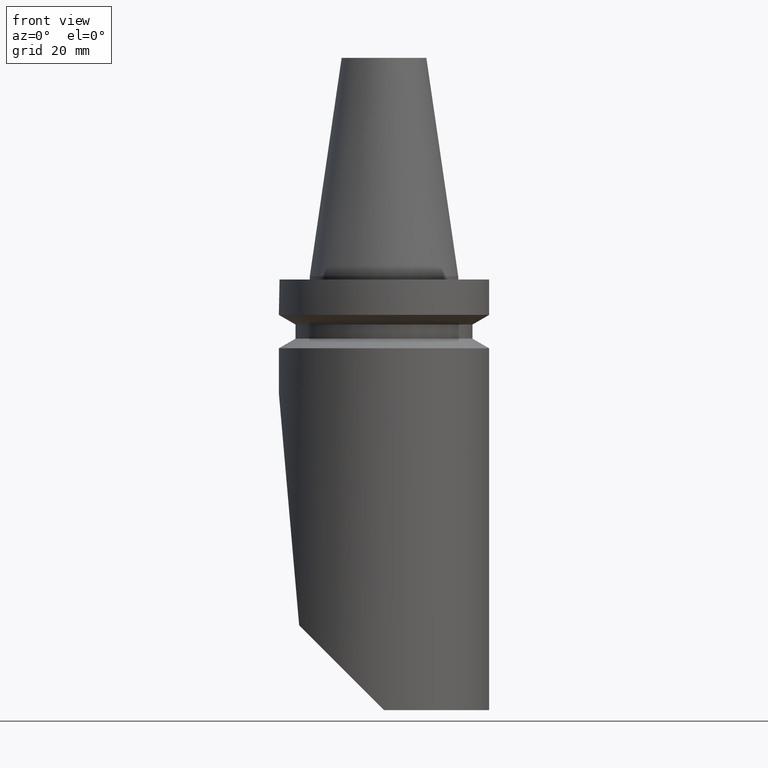
[diagram: clean part render]
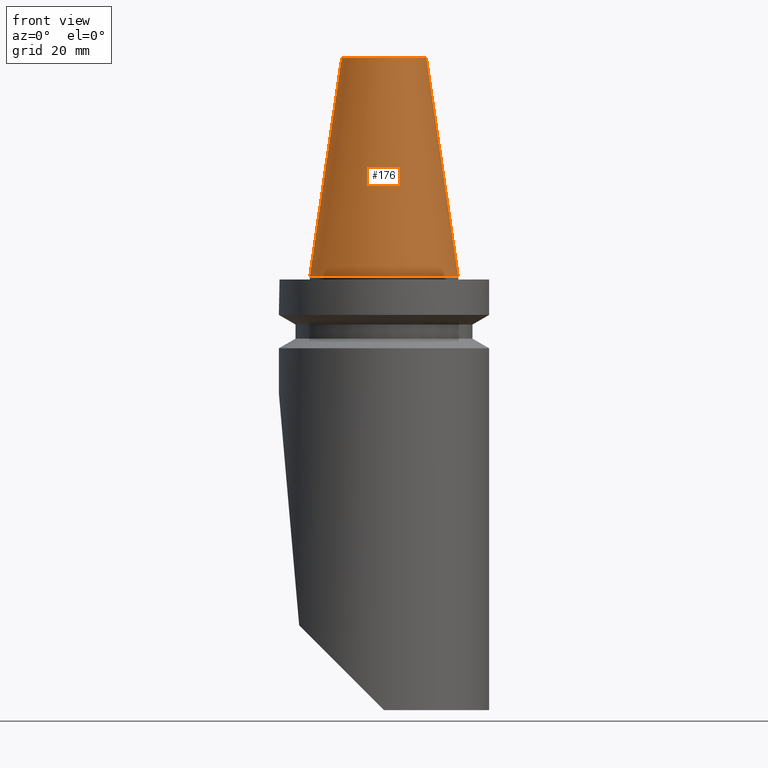
[diagram: same view with one face highlighted and labeled with its STEP entity id]
A machine part, front view. The second image highlights one B-rep face of the part: STEP entity #176.
In plain terms, the highlighted conical surface has half-angle 8.297 deg.
Its self-contained STEP definition (entity closure, byte-faithful):
#176=ADVANCED_FACE('240[2]',(#379,#380),#381,.T.);
#186=EDGE_CURVE('240[2]',#391,#391,#392,.T.);
#191=EDGE_CURVE('240[2]',#398,#398,#399,.T.);
#379=FACE_BOUND('',#656,.T.);
#380=FACE_BOUND('',#657,.T.);
#381=CONICAL_SURFACE('',#658,17.4562500022463,0.144812498171676);
#391=VERTEX_POINT('',#676);
#392=CIRCLE('',#677,12.6875000044926);
#398=VERTEX_POINT('',#685);
#399=CIRCLE('',#686,22.225);
#656=EDGE_LOOP('',(#899));
#657=EDGE_LOOP('',(#900));
#658=AXIS2_PLACEMENT_3D('',#901,#902,#903);
#676=CARTESIAN_POINT('',(12.6875000044926,1.67393909275927E-015,65.4));
#677=AXIS2_PLACEMENT_3D('',#910,#911,#912);
#685=CARTESIAN_POINT('',(22.225,-4.08266626665749E-015,2.72177751110499E-015));
#686=AXIS2_PLACEMENT_3D('',#924,#925,#926);
#899=ORIENTED_EDGE('',*,*,#191,.F.);
#900=ORIENTED_EDGE('',*,*,#186,.T.);
#901=CARTESIAN_POINT('',(-4.00459503321184E-015,2.00229751660592E-015,32.7));
#902=DIRECTION('',(1.22464679914735E-016,-6.12323399573677E-017,-1.0));
#903=DIRECTION('',(1.0,-1.83697019872103E-016,1.22464679914735E-016));
#910=CARTESIAN_POINT('',(-8.00919006642369E-015,4.00459503321185E-015,65.4));
#911=DIRECTION('',(1.22464679914735E-016,-6.12323399573677E-017,-1.0));
#912=DIRECTION('',(1.0,-1.83697019872103E-016,1.22464679914735E-016));
#924=CARTESIAN_POINT('',(0.0,0.0,0.0));
#925=DIRECTION('',(1.22464679914735E-016,-6.12323399573677E-017,-1.0));
#926=DIRECTION('',(1.0,-1.83697019872103E-016,1.22464679914735E-016));